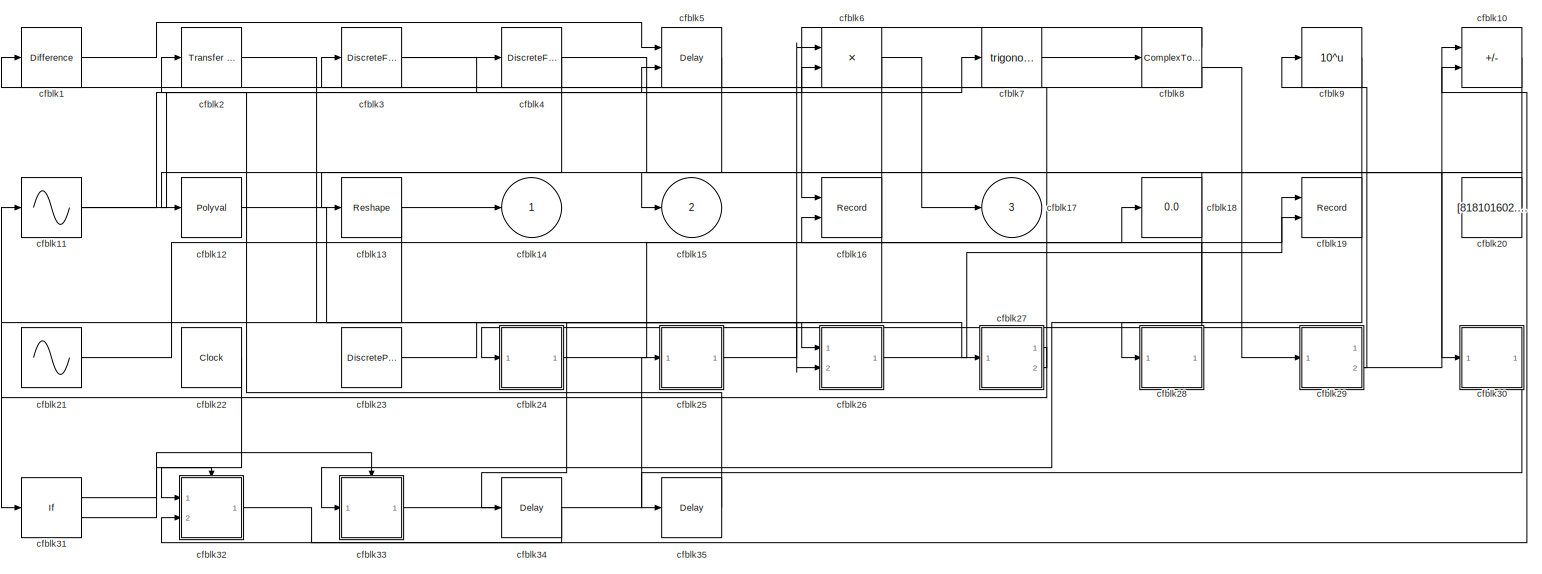
[diagram: root canvas - part 1/1, most of the canvas]
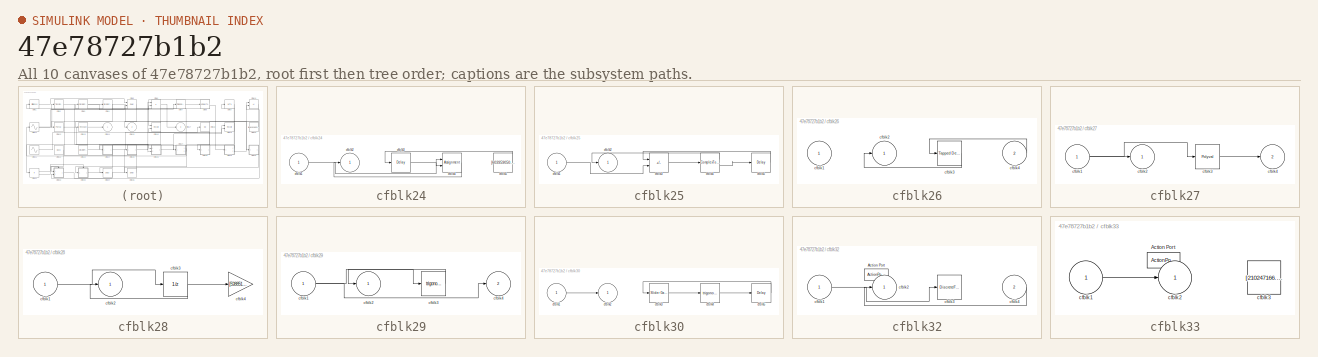
[diagram: thumbnail index - all 10 canvases of the model, root first then tree order]
MODEL slx_47e78727b1b2
KIND model
CONFIG AbsTol = auto
CONFIG EnableMultiTasking = off
CONFIG FixedStep = auto
CONFIG MaxStep = auto
CONFIG MinStep = auto
CONFIG RelTol = 1e-3
CONFIG SampleTimeConstraint = Unconstrained
CONFIG SolverName = VariableStepAuto
CONFIG StartTime = 0.0
CONFIG StopTime = 10.0
BLOCK [Reference] cfblk1  REF=simulink/Discrete/Difference
  Ports = [1, 1]
  SourceBlock = simulink/Discrete/Difference
  SourceProductBaseCode = SL
  SourceType = Difference
BLOCK [Sum] cfblk10
  IconShape = rectangular
  Inputs = +-
  Ports = [2, 1]
BLOCK [Sin] cfblk11
  Ports = [1, 1]
  SampleTime = 0
  TimeSource = Use external signal
BLOCK [Polyval] cfblk12
  Coefs = [ +2.081618890e-019, -1.441693666e-014, +4.719686976e-010, -8.536869453e-006, +1.621573104e-001, -8.087801117e+001 ]
BLOCK [Reshape] cfblk13
  Ports = [1, 1]
BLOCK [Outport] cfblk14
BLOCK [Outport] cfblk15
  Port = 2
BLOCK [Record] cfblk16
  CompatibilityTag = XY
  FileSettingsInternal = {"entries":[{"content":{"excelSettings":{"content":{},"type":"Streamout.ExcelSettings"}},"type":"Streamout.FileSettingStorage","uuid":"b027f13b-7ca7-49e6-b85d-a561881e7aea"}],"packageUris":["http://schema.mathworks.com/mf0/streamout_blocks/R2020a"],"version":"1.0"}
  Layout = [1 1]
  Ports = [2]
  SignalsInternal = {"entries":[{"content":{"signals":[{"content":{"blockPath":["sampleModel148/cfblk16"],"channel":[],"dimensions":[1],"domain":"sampleModel148/cfblk16","lineColor":"#a2142f","plots":[1],"port":1,"sid":[""],"signalID":5356,"signalName":"cfblk8:1"},"type":"RecordBlkView.Signal","uuid":"ed710109-99ea-47aa-aeca-7e9a823f4830"},{"content":{"blockPath":["sampleModel148/cfblk16"],"channel":[],"dimensions":[...<+384ch>
  VisualizationBindings = {"xyplotplugin":{"info":[{"series":[{"bindingParametersList":[{"parameter":"X-Axis","signalID":5356,"signalName":"cfblk8:1"},{"parameter":"Y-Axis","signalID":5360,"signalName":"cfblk28"}],"seriesID":20638}],"subplotID":1}]}}
BLOCK [Outport] cfblk17
  Port = 3
BLOCK [Display] cfblk18
  Decimation = 1
  Ports = [1]
BLOCK [Record] cfblk19
  CompatibilityTag = XY
  FileSettingsInternal = {"entries":[{"content":{"excelSettings":{"content":{},"type":"Streamout.ExcelSettings"}},"type":"Streamout.FileSettingStorage","uuid":"d953e4ab-c191-438b-b4c1-9475d4502db0"}],"packageUris":["http://schema.mathworks.com/mf0/streamout_blocks/R2020a"],"version":"1.0"}
  Layout = [1 1]
  Ports = [2]
  SignalsInternal = {"entries":[{"content":{"signals":[{"content":{"blockPath":["sampleModel148/cfblk19"],"channel":[],"dimensions":[1],"domain":"sampleModel148/cfblk19","lineColor":"#a2142f","plots":[1],"port":1,"sid":[""],"signalID":5364,"signalName":"cfblk26"},"type":"RecordBlkView.Signal","uuid":"680231d5-d346-436f-ba17-d46778f7a71e"},{"content":{"blockPath":["sampleModel148/cfblk19"],"channel":[],"dimensions":[1...<+383ch>
  VisualizationBindings = {"xyplotplugin":{"info":[{"series":[{"bindingParametersList":[{"parameter":"X-Axis","signalID":5364,"signalName":"cfblk26"},{"parameter":"Y-Axis","signalID":5368,"signalName":"cfblk24"}],"seriesID":17137}],"subplotID":1}]}}
BLOCK [Reference] cfblk2  REF=simulink/Discrete/Transfer Fcn
Real Zero
  Ports = [1, 1]
  SourceBlock = simulink/Discrete/Transfer Fcn\nReal Zero
  SourceProductBaseCode = SL
  SourceType = Transfer Fcn Real Zero
BLOCK [Constant] cfblk20
  SampleTime = 1
  Value = [818101602.705356]
BLOCK [Sin] cfblk21
  Amplitude = [-182354528.104471]
  Bias = [-693142871.080695]
  Ports = [0, 1]
  SampleTime = 0
BLOCK [Clock] cfblk22
BLOCK [DiscretePulseGenerator] cfblk23
  Amplitude = [879322730.329937]
  Period = [72538017.737468]
  PhaseDelay = [7.000000]
  Ports = [0, 1]
  PulseType = Time based
  PulseWidth = 5
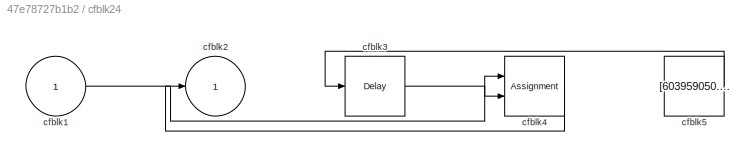
BLOCK [SubSystem] cfblk24
  Ports = [1, 1]
  RequestExecContextInheritance = off
BLOCK [Inport] cfblk24/cfblk1
BLOCK [Outport] cfblk24/cfblk2
BLOCK [Delay] cfblk24/cfblk3
  InputPortMap = u0
  Ports = [1, 1]
  SampleTime = 1
BLOCK [Assignment] cfblk24/cfblk4
  DiagnosticForDimensions = Warning
  IndexOptions = Index vector (dialog)
  Indices = 1
  OutputSizes = 1
  Ports = [2, 1]
BLOCK [Constant] cfblk24/cfblk5
  SampleTime = 1
  Value = [603959050.026372]
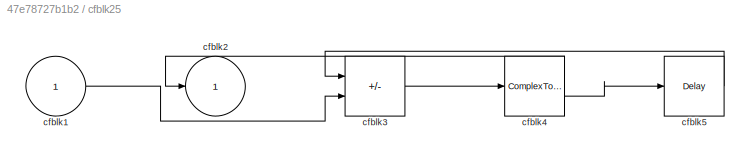
BLOCK [SubSystem] cfblk25
  Ports = [1, 1]
  RequestExecContextInheritance = off
BLOCK [Inport] cfblk25/cfblk1
BLOCK [Outport] cfblk25/cfblk2
BLOCK [Sum] cfblk25/cfblk3
  IconShape = rectangular
  Inputs = +-
  Ports = [2, 1]
BLOCK [ComplexToMagnitudeAngle] cfblk25/cfblk4
  Ports = [1, 2]
BLOCK [Delay] cfblk25/cfblk5
  InputPortMap = u0
  Ports = [1, 1]
  SampleTime = 1
BLOCK [SubSystem] cfblk26
  Ports = [2, 1]
  RequestExecContextInheritance = off
BLOCK [Inport] cfblk26/cfblk1
BLOCK [Outport] cfblk26/cfblk2
BLOCK [Reference] cfblk26/cfblk3  REF=simulink/Discrete/Tapped Delay
  Ports = [1, 1]
  SourceBlock = simulink/Discrete/Tapped Delay
  SourceProductBaseCode = SL
  SourceType = Tapped Delay Line
BLOCK [Inport] cfblk26/cfblk4
  Port = 2
BLOCK [SubSystem] cfblk27
  Ports = [1, 2]
  RequestExecContextInheritance = off
BLOCK [Inport] cfblk27/cfblk1
BLOCK [Outport] cfblk27/cfblk2
BLOCK [Polyval] cfblk27/cfblk3
  Coefs = [ +2.081618890e-019, -1.441693666e-014, +4.719686976e-010, -8.536869453e-006, +1.621573104e-001, -8.087801117e+001 ]
BLOCK [Outport] cfblk27/cfblk4
  Port = 2
BLOCK [SubSystem] cfblk28
  Ports = [1, 1]
  RequestExecContextInheritance = off
BLOCK [Inport] cfblk28/cfblk1
BLOCK [Outport] cfblk28/cfblk2
BLOCK [UnitDelay] cfblk28/cfblk3
  HasFrameUpgradeWarning = on
BLOCK [Gain] cfblk28/cfblk4
  Gain = [538851626.322567]
BLOCK [SubSystem] cfblk29
  Ports = [1, 2]
  RequestExecContextInheritance = off
BLOCK [Inport] cfblk29/cfblk1
BLOCK [Outport] cfblk29/cfblk2
BLOCK [Trigonometry] cfblk29/cfblk3
  Ports = [1, 1]
BLOCK [Outport] cfblk29/cfblk4
  Port = 2
BLOCK [DiscreteFir] cfblk3
  InputPortMap = u0
  OutputPortMap = o0
  Ports = [1, 1]
  SampleTime = 1
BLOCK [SubSystem] cfblk30
  Ports = [1, 1]
  RequestExecContextInheritance = off
BLOCK [Inport] cfblk30/cfblk1
BLOCK [Outport] cfblk30/cfblk2
BLOCK [Reference] cfblk30/cfblk3  REF=simulink/Math
Operations/Slider
Gain
  Ports = [1, 1]
  SourceBlock = simulink/Math\nOperations/Slider\nGain
  SourceProductBaseCode = SL
  SourceType = Slider Gain
BLOCK [Trigonometry] cfblk30/cfblk4
  Ports = [1, 1]
BLOCK [Delay] cfblk30/cfblk5
  InputPortMap = u0
  Ports = [1, 1]
  SampleTime = 1
BLOCK [If] cfblk31
  IfExpression = u1 >= 0
  Ports = [1, 2]
  SampleTime = 1
BLOCK [SubSystem] cfblk32
  Ports = [2, 1, 0, 0, 0, 0, 0, 1]
  RequestExecContextInheritance = off
  TreatAsAtomicUnit = on
BLOCK [ActionPort] cfblk32/Action Port
  ActionPortLabel = if(u1 >= 0)
BLOCK [Inport] cfblk32/cfblk1
BLOCK [Outport] cfblk32/cfblk2
BLOCK [DiscreteFilter] cfblk32/cfblk3
  InputPortMap = u0
  Ports = [1, 1]
BLOCK [Inport] cfblk32/cfblk4
  Port = 2
BLOCK [SubSystem] cfblk33
  Ports = [1, 1, 0, 0, 0, 0, 0, 1]
  RequestExecContextInheritance = off
  TreatAsAtomicUnit = on
BLOCK [ActionPort] cfblk33/Action Port
  ActionPortLabel = else
BLOCK [Inport] cfblk33/cfblk1
BLOCK [Outport] cfblk33/cfblk2
BLOCK [Constant] cfblk33/cfblk3
  SampleTime = 1
  Value = [210247166.851450]
BLOCK [Delay] cfblk34
  InputPortMap = u0
  Ports = [1, 1]
  SampleTime = 1
BLOCK [Delay] cfblk35
  InputPortMap = u0
  Ports = [1, 1]
  SampleTime = 1
BLOCK [DiscreteFir] cfblk4
  InputPortMap = u0
  OutputPortMap = o0
  Ports = [1, 1]
  SampleTime = 1
BLOCK [Delay] cfblk5
  InputPortMap = u0,e6
  Ports = [2, 1]
  SampleTime = 1
  ShowEnablePort = on
BLOCK [Product] cfblk6
  Inputs = **
  Ports = [2, 1]
BLOCK [Trigonometry] cfblk7
  Ports = [1, 1]
BLOCK [ComplexToMagnitudeAngle] cfblk8
  Ports = [1, 2]
BLOCK [Math] cfblk9
  Operator = 10^u
  Ports = [1, 1]
LINE cfblk10:1 -> cfblk28:1
NET cfblk11:1 -> cfblk6:2, cfblk7:1
LINE cfblk12:1 -> cfblk26:2
NET cfblk13:1 -> cfblk14:1, cfblk31:1
LINE cfblk1:1 -> cfblk5:1
LINE cfblk20:1 -> cfblk15:1
LINE cfblk21:1 -> cfblk18:1
LINE cfblk22:1 -> cfblk32:1
LINE cfblk23:1 -> cfblk26:1
LINE cfblk24/cfblk1:1 -> cfblk24/cfblk4:1
LINE cfblk24/cfblk3:1 -> cfblk24/cfblk4:2
LINE cfblk24/cfblk4:1 -> cfblk24/cfblk2:1
LINE cfblk24/cfblk5:1 -> cfblk24/cfblk3:1
LINE cfblk24:1 -> cfblk19:2
LINE cfblk25/cfblk1:1 -> cfblk25/cfblk3:2
LINE cfblk25/cfblk3:1 -> cfblk25/cfblk4:1
LINE cfblk25/cfblk4:1 -> cfblk25/cfblk2:1
LINE cfblk25/cfblk4:2 -> cfblk25/cfblk5:1
LINE cfblk25/cfblk5:1 -> cfblk25/cfblk3:1
LINE cfblk25:1 -> cfblk6:1
LINE cfblk26/cfblk3:1 -> cfblk26/cfblk2:1
LINE cfblk26/cfblk4:1 -> cfblk26/cfblk3:1
LINE cfblk26:1 -> cfblk19:1
NET cfblk27/cfblk1:1 -> cfblk27/cfblk2:1, cfblk27/cfblk3:1
LINE cfblk27/cfblk3:1 -> cfblk27/cfblk4:1
LINE cfblk27:1 -> cfblk11:1
LINE cfblk27:2 -> cfblk3:1
LINE cfblk28/cfblk1:1 -> cfblk28/cfblk3:1
NET cfblk28/cfblk3:1 -> cfblk28/cfblk2:1, cfblk28/cfblk4:1
LINE cfblk28:1 -> cfblk16:2
NET cfblk29/cfblk1:1 -> cfblk29/cfblk3:1, cfblk29/cfblk4:1
LINE cfblk29/cfblk3:1 -> cfblk29/cfblk2:1
LINE cfblk29:1 -> cfblk24:1
NET cfblk29:2 -> cfblk10:2, cfblk9:1
LINE cfblk2:1 -> cfblk27:1
LINE cfblk30/cfblk1:1 -> cfblk30/cfblk2:1
LINE cfblk30/cfblk3:1 -> cfblk30/cfblk4:1
LINE cfblk30/cfblk4:1 -> cfblk30/cfblk5:1
LINE cfblk30/cfblk5:1 -> cfblk30/cfblk3:1
LINE cfblk30:1 -> cfblk35:1
LINE cfblk31:1 -> cfblk32:ifaction
LINE cfblk31:2 -> cfblk33:ifaction
LINE cfblk32/cfblk1:1 -> cfblk32/cfblk3:1
LINE cfblk32/cfblk4:1 -> cfblk32/cfblk2:1
LINE cfblk32:1 -> cfblk10:1
LINE cfblk33/cfblk1:1 -> cfblk33/cfblk2:1
LINE cfblk33:1 -> cfblk25:1
LINE cfblk34:1 -> cfblk32:2
LINE cfblk35:1 -> cfblk2:1
NET cfblk3:1 -> cfblk4:1, cfblk5:2
NET cfblk4:1 -> cfblk13:1, cfblk30:1
LINE cfblk5:1 -> cfblk12:1
NET cfblk6:1 -> cfblk17:1, cfblk34:1
LINE cfblk7:1 -> cfblk8:1
LINE cfblk8:1 -> cfblk16:1
NET cfblk8:2 -> cfblk1:1, cfblk29:1
LINE cfblk9:1 -> cfblk33:1
note: NET lines group one-source signal fan-out (src -> all destinations, sorted); 1:1 wires keep LINE
